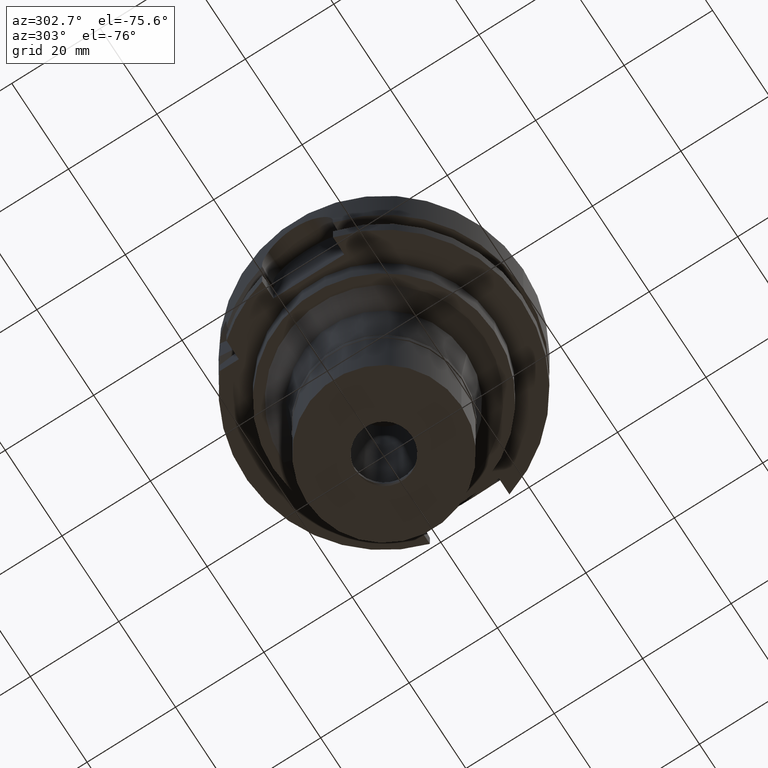
[diagram: clean part render]
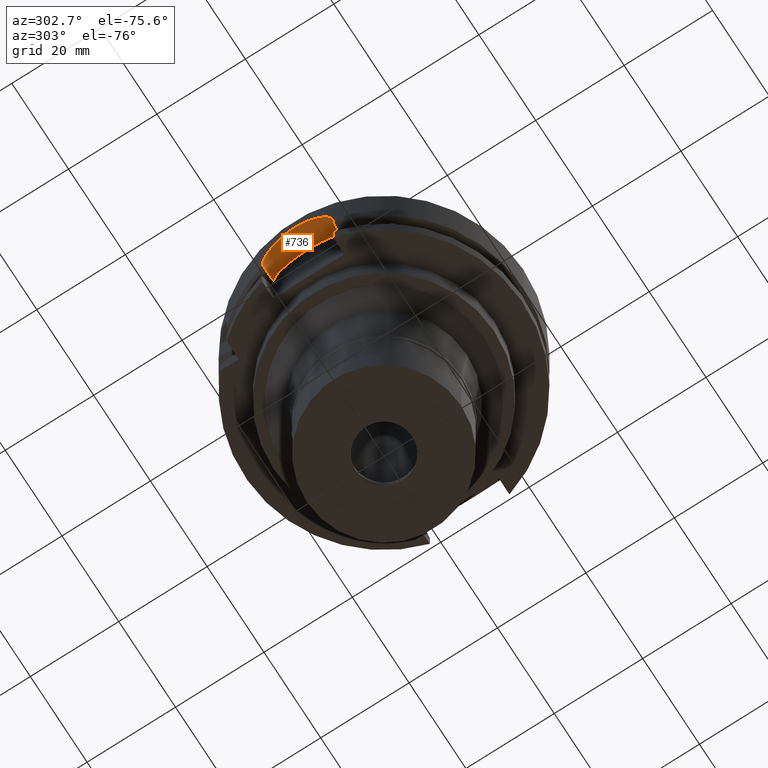
[diagram: same view with one face highlighted and labeled with its STEP entity id]
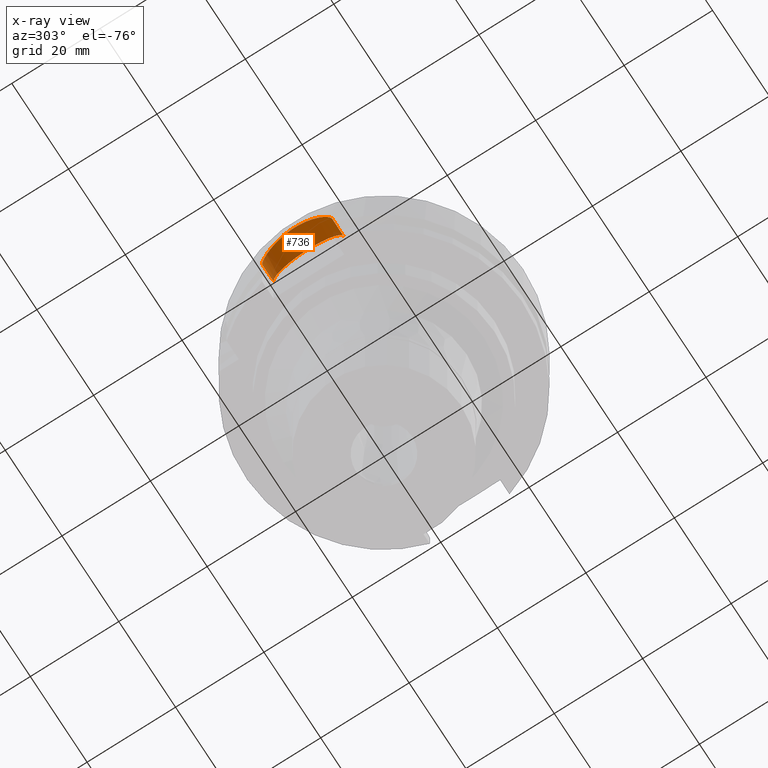
[diagram: x-ray of the same camera — body ghosted, the highlighted face saturated]
A machine part, auxiliary view. The second image highlights one B-rep face of the part: STEP entity #736.
The next image is the same camera in x-ray: the body ghosted, the highlighted face saturated — about 1% of this face is hidden behind the body in this view.
In plain terms, the highlighted cylindrical surface (partial cylindrical patch) has radius 8 mm, axis along (1, 0, 0).
Its self-contained STEP definition (entity closure, byte-faithful):
#30 = CARTESIAN_POINT ( 'NONE',  ( -30.57233717797218375, 7.588684322508629343, -10.45425618821654901 ) ) ;
#146 = CARTESIAN_POINT ( 'NONE',  ( -31.10597518893189317, 4.967801608274046821, -6.727898284147823205 ) ) ;
#175 = CARTESIAN_POINT ( 'NONE',  ( -31.28954084417080850, 3.637070280316221815, -5.873293663023463118 ) ) ;
#198 = CARTESIAN_POINT ( 'NONE',  ( -30.57221971732888477, -7.589156829320734765, -10.45567397416066591 ) ) ;
#227 = CARTESIAN_POINT ( 'NONE',  ( -31.21750877598489282, -4.210714091280680194, -6.196544939650522110 ) ) ;
#257 = CARTESIAN_POINT ( 'NONE',  ( -31.30298909983700995, 3.519547592976884243, -5.814547669718150402 ) ) ;
#285 = CARTESIAN_POINT ( 'NONE',  ( -31.36478182114036528, -2.918134803433062530, -5.550077293332599027 ) ) ;
#495 = CARTESIAN_POINT ( 'NONE',  ( -30.51893367473055108, 7.800472417067185305, -11.20535282269214328 ) ) ;
#583 = CARTESIAN_POINT ( 'NONE',  ( -30.95339521520391557, 5.845824410285288764, -7.532364492011960344 ) ) ;
#645 = CARTESIAN_POINT ( 'NONE',  ( -31.32926139478404437, -3.284444874293432903, -5.700584946566940481 ) ) ;
#664 = CYLINDRICAL_SURFACE ( 'NONE', #857, 8.000000000000000000 ) ;
#673 = CARTESIAN_POINT ( 'NONE',  ( -31.30329595392296937, -3.522533039455160164, -5.812390806435327129 ) ) ;
#700 = CARTESIAN_POINT ( 'NONE',  ( -31.20241979553021494, -4.321057527336143345, -6.266097809161818688 ) ) ;
#722 = CARTESIAN_POINT ( 'NONE',  ( -31.50000000000000000, 0.0000000000000000000, -13.00000000000000000 ) ) ;
#736 = ADVANCED_FACE ( 'NONE', ( #3378 ), #664, .F. ) ;
#857 = AXIS2_PLACEMENT_3D ( 'NONE', #722, #3271, #2009 ) ;
#1004 = CARTESIAN_POINT ( 'NONE',  ( -26.50000000000000000, -8.000000000000000000, -13.00000000000000000 ) ) ;
#1008 = CARTESIAN_POINT ( 'NONE',  ( -30.46719547316000032, 8.000000000000000000, -13.00000000000000000 ) ) ;
#1010 = ORIENTED_EDGE ( 'NONE', *, *, #2671, .F. ) ;
#1020 = AXIS2_PLACEMENT_3D ( 'NONE', #1202, #2929, #5573 ) ;
#1066 = CARTESIAN_POINT ( 'NONE',  ( -31.43404328909423739, 2.052651585382271548, -5.263364878281672432 ) ) ;
#1099 = CARTESIAN_POINT ( 'NONE',  ( -30.66829439183028683, -7.191777428149594975, -9.485901219026040110 ) ) ;
#1202 = CARTESIAN_POINT ( 'NONE',  ( -26.50000000000000000, 0.0000000000000000000, -13.00000000000000000 ) ) ;
#1208 = EDGE_CURVE ( 'NONE', #2350, #1219, #3232, .T. ) ;
#1219 = VERTEX_POINT ( 'NONE', #1684 ) ;
#1425 = CARTESIAN_POINT ( 'NONE',  ( -30.66617644348121985, 7.202627032269680818, -9.478632536660150265 ) ) ;
#1454 = CARTESIAN_POINT ( 'NONE',  ( -30.91893338653186163, 6.024844494671934392, -7.730123708915564329 ) ) ;
#1480 = CARTESIAN_POINT ( 'NONE',  ( -31.48718089941408138, 1.033466738102148952, -5.050045406864879460 ) ) ;
#1511 = CARTESIAN_POINT ( 'NONE',  ( -31.44949717072147877, -1.801392301127206830, -5.201080277751932712 ) ) ;
#1545 = CARTESIAN_POINT ( 'NONE',  ( -30.48036050189218571, -7.950356871973275119, -11.97071498080011942 ) ) ;
#1601 = CARTESIAN_POINT ( 'NONE',  ( -30.46719547316398646, -8.000000000001026734, -12.48317112683660035 ) ) ;
#1684 = CARTESIAN_POINT ( 'NONE',  ( -30.46719547316000032, 8.000000000000000000, -13.00000000000000000 ) ) ;
#1697 = VERTEX_POINT ( 'NONE', #1004 ) ;
#1904 = CARTESIAN_POINT ( 'NONE',  ( -31.37653924856057586, 2.796761741870739559, -5.500262343897791339 ) ) ;
#1930 = CARTESIAN_POINT ( 'NONE',  ( -31.12245666180012194, -4.866791379890946345, -6.645082477707934920 ) ) ;
#1962 = CARTESIAN_POINT ( 'NONE',  ( -31.37578600938300255, -2.797363406161848420, -5.503890351273655668 ) ) ;
#1990 = CARTESIAN_POINT ( 'NONE',  ( -31.49999282048707272, -0.2605281969906326212, -5.000027238485372116 ) ) ;
#2009 = DIRECTION ( 'NONE',  ( 0.0000000000000000000, 0.0000000000000000000, 1.000000000000000000 ) ) ;
#2105 = EDGE_CURVE ( 'NONE', #3967, #1697, #4254, .T. ) ;
#2142 = CARTESIAN_POINT ( 'NONE',  ( -30.46719547316000032, -8.000000000000000000, -13.00000000000000000 ) ) ;
#2145 = ORIENTED_EDGE ( 'NONE', *, *, #1208, .F. ) ;
#2200 = DIRECTION ( 'NONE',  ( 1.000000000000000000, 8.686570378873998593E-14, 0.0000000000000000000 ) ) ;
#2224 = CARTESIAN_POINT ( 'NONE',  ( -30.85175720740291894, 6.359895452068077049, -8.139646238724299820 ) ) ;
#2350 = VERTEX_POINT ( 'NONE', #5151 ) ;
#2363 = CARTESIAN_POINT ( 'NONE',  ( -31.24713637114095022, -3.984900995071807284, -6.061804231024475520 ) ) ;
#2389 = CARTESIAN_POINT ( 'NONE',  ( -31.17125952987590409, 4.540361974738981843, -6.412027133022179193 ) ) ;
#2420 = CARTESIAN_POINT ( 'NONE',  ( -30.91857265969926161, -6.036448038416629913, -7.723296958577293481 ) ) ;
#2671 = EDGE_CURVE ( 'NONE', #1219, #3967, #2737, .T. ) ;
#2704 = CARTESIAN_POINT ( 'NONE',  ( -30.46719547316397581, 8.000000000001037392, -12.74141075478946306 ) ) ;
#2732 = CARTESIAN_POINT ( 'NONE',  ( -30.72362743262899443, 6.956923362928725041, -9.014860882612961035 ) ) ;
#2737 = B_SPLINE_CURVE_WITH_KNOTS ( 'NONE', 3,
 ( #1008, #2704, #3163, #4475, #3558, #495, #3935, #30, #4448, #1425, #2732, #4390, #2224, #1454, #583, #4922, #4047, #146, #3614, #3191, #2389, #4129, #4158, #175, #257, #2822, #3218, #1904, #4561, #1066, #4953, #1480, #2792, #1990, #3757, #3729, #3643, #1511, #3701, #4530, #1962, #285, #645, #673, #5501, #2363, #227, #700, #4648, #1930, #3666, #5415, #2420, #5383, #4188, #5472, #1099, #4099, #3247, #198, #4073, #5442, #1545, #1601, #3279 ),
 .UNSPECIFIED., .F., .F.,
 ( 4, 2, 2, 2, 2, 2, 2, 2, 2, 2, 2, 2, 2, 2, 2, 2, 2, 2, 2, 1, 2, 2, 2, 2, 2, 2, 2, 2, 2, 2, 2, 2, 4 ),
 ( 0.0000000000000000000, 0.03124999999999996531, 0.06249999999999993061, 0.09374999999999986122, 0.1249999999999997780, 0.1874999999999996669, 0.2187499999999996392, 0.2499999999999996392, 0.2812499999999996114, 0.2968749999999995559, 0.3124999999999995004, 0.3437499999999992784, 0.3593749999999992784, 0.3749999999999992784, 0.4062499999999992228, 0.4374999999999991673, 0.4999999999999991118, 0.5312499999999991118, 0.5624999999999990008, 0.5937499999999990008, 0.6093749999999990008, 0.6249999999999990008, 0.6562499999999987788, 0.6718749999999987788, 0.6874999999999987788, 0.7187499999999987788, 0.7499999999999987788, 0.8124999999999988898, 0.8437499999999991118, 0.8749999999999992228, 0.9062499999999994449, 0.9374999999999996669, 1.000000000000000000 ),
 .UNSPECIFIED. ) ;
#2792 = CARTESIAN_POINT ( 'NONE',  ( -31.50001432302336468, 0.5184478546379286401, -4.999946921187931714 ) ) ;
#2822 = CARTESIAN_POINT ( 'NONE',  ( -31.32884522479447043, 3.281432419632631436, -5.702786143403868913 ) ) ;
#2843 = EDGE_CURVE ( 'NONE', #2350, #1697, #2923, .T. ) ;
#2923 = CIRCLE ( 'NONE', #1020, 8.000000000000000000 ) ;
#2929 = DIRECTION ( 'NONE',  ( 1.000000000000000000, 0.0000000000000000000, 0.0000000000000000000 ) ) ;
#3163 = CARTESIAN_POINT ( 'NONE',  ( -30.47046940356813849, 7.987562579235286897, -12.48389672851984322 ) ) ;
#3191 = CARTESIAN_POINT ( 'NONE',  ( -31.15505801267340402, 4.650160006323329931, -6.489012830880763971 ) ) ;
#3218 = CARTESIAN_POINT ( 'NONE',  ( -31.34136433185517134, 3.159692181563062530, -5.649299289352271103 ) ) ;
#3232 = LINE ( 'NONE', #4967, #4310 ) ;
#3247 = CARTESIAN_POINT ( 'NONE',  ( -30.59373676540166542, -7.502246369407986393, -10.20989857615184349 ) ) ;
#3271 = DIRECTION ( 'NONE',  ( 1.000000000000000000, 0.0000000000000000000, 0.0000000000000000000 ) ) ;
#3279 = CARTESIAN_POINT ( 'NONE',  ( -30.46719547316000032, -8.000000000000000000, -13.00000000000000000 ) ) ;
#3378 = FACE_OUTER_BOUND ( 'NONE', #4884, .T. ) ;
#3558 = CARTESIAN_POINT ( 'NONE',  ( -30.49311703359617809, 7.900790855821614223, -11.71738148936353952 ) ) ;
#3614 = CARTESIAN_POINT ( 'NONE',  ( -31.12249083192671861, 4.863351958689757559, -6.646597231190939148 ) ) ;
#3643 = CARTESIAN_POINT ( 'NONE',  ( -31.47467690399206930, -1.288642814393304414, -5.100161920025788831 ) ) ;
#3666 = CARTESIAN_POINT ( 'NONE',  ( -31.05571262838559221, -5.275953008143592804, -6.980406633510423120 ) ) ;
#3701 = CARTESIAN_POINT ( 'NONE',  ( -31.42616245214663451, -2.180633058149962444, -5.295127838422803990 ) ) ;
#3729 = CARTESIAN_POINT ( 'NONE',  ( -31.48408220224720822, -1.033854069595381064, -5.062799221716598019 ) ) ;
#3757 = CARTESIAN_POINT ( 'NONE',  ( -31.49677498113646124, -0.5190877986759734330, -5.012592344104609410 ) ) ;
#3935 = CARTESIAN_POINT ( 'NONE',  ( -30.53486775665335884, 7.738073491121625125, -10.95272776246274127 ) ) ;
#3967 = VERTEX_POINT ( 'NONE', #5575 ) ;
#4046 = VECTOR ( 'NONE', #2200, 1000.000000000000000 ) ;
#4047 = CARTESIAN_POINT ( 'NONE',  ( -31.05592142090833718, 5.274725186474944039, -6.979328001423875882 ) ) ;
#4073 = CARTESIAN_POINT ( 'NONE',  ( -30.53478132457634331, -7.738413873977173729, -10.95404076894819845 ) ) ;
#4099 = CARTESIAN_POINT ( 'NONE',  ( -30.64173941620976649, -7.303713809226167086, -9.725163778904075684 ) ) ;
#4129 = CARTESIAN_POINT ( 'NONE',  ( -31.21807092385178350, 4.210852402483280521, -6.192810700883612185 ) ) ;
#4158 = CARTESIAN_POINT ( 'NONE',  ( -31.24778610015718527, 3.985028191969540057, -6.058127333383935387 ) ) ;
#4188 = CARTESIAN_POINT ( 'NONE',  ( -30.75521154237908661, -6.810977657199169144, -8.795226142250033519 ) ) ;
#4254 = LINE ( 'NONE', #2142, #4046 ) ;
#4310 = VECTOR ( 'NONE', #5101, 1000.000000000000000 ) ;
#4390 = CARTESIAN_POINT ( 'NONE',  ( -30.81885633634501431, 6.516947939326380279, -8.352431729953119444 ) ) ;
#4448 = CARTESIAN_POINT ( 'NONE',  ( -30.59375340777293317, 7.502186739981788755, -10.20961238160382933 ) ) ;
#4475 = CARTESIAN_POINT ( 'NONE',  ( -30.48347368593275419, 7.937788966080352004, -11.97101911386245376 ) ) ;
#4530 = CARTESIAN_POINT ( 'NONE',  ( -31.39671494538355390, -2.551760249525071966, -5.416713587658064100 ) ) ;
#4561 = CARTESIAN_POINT ( 'NONE',  ( -31.39751812030244693, 2.551139337022062303, -5.413139665320037430 ) ) ;
#4648 = CARTESIAN_POINT ( 'NONE',  ( -31.15515490541417876, -4.653652310156303429, -6.487463031358436716 ) ) ;
#4714 = ORIENTED_EDGE ( 'NONE', *, *, #2105, .F. ) ;
#4884 = EDGE_LOOP ( 'NONE', ( #2145, #5090, #4714, #1010 ) ) ;
#4922 = CARTESIAN_POINT ( 'NONE',  ( -31.02187905824589365, 5.470773078830945657, -7.156983224148442346 ) ) ;
#4953 = CARTESIAN_POINT ( 'NONE',  ( -31.44966230151158371, 1.798303295798246770, -5.200421216196077445 ) ) ;
#4967 = CARTESIAN_POINT ( 'NONE',  ( -26.50000000000000000, 8.000000000000000000, -13.00000000000000000 ) ) ;
#5090 = ORIENTED_EDGE ( 'NONE', *, *, #2843, .T. ) ;
#5101 = DIRECTION ( 'NONE',  ( -1.000000000000000000, 8.776122650820999714E-14, 0.0000000000000000000 ) ) ;
#5151 = CARTESIAN_POINT ( 'NONE',  ( -26.50000000000000000, 8.000000000000000000, -13.00000000000000000 ) ) ;
#5383 = CARTESIAN_POINT ( 'NONE',  ( -30.85032094693871940, -6.371617700732562284, -8.133432757271183533 ) ) ;
#5415 = CARTESIAN_POINT ( 'NONE',  ( -31.02184410210161047, -5.471005260763791789, -7.157139546663594309 ) ) ;
#5442 = CARTESIAN_POINT ( 'NONE',  ( -30.51876128852104841, -7.801143960569508096, -11.20858985243578587 ) ) ;
#5472 = CARTESIAN_POINT ( 'NONE',  ( -30.72496428720811323, -6.945683049909291640, -9.021600275602414953 ) ) ;
#5501 = CARTESIAN_POINT ( 'NONE',  ( -31.26152886783721030, -3.870459532615759812, -5.997300732806160717 ) ) ;
#5573 = DIRECTION ( 'NONE',  ( 0.0000000000000000000, 1.000000000000000000, 0.0000000000000000000 ) ) ;
#5575 = CARTESIAN_POINT ( 'NONE',  ( -30.46719547316000032, -8.000000000000000000, -13.00000000000000000 ) ) ;